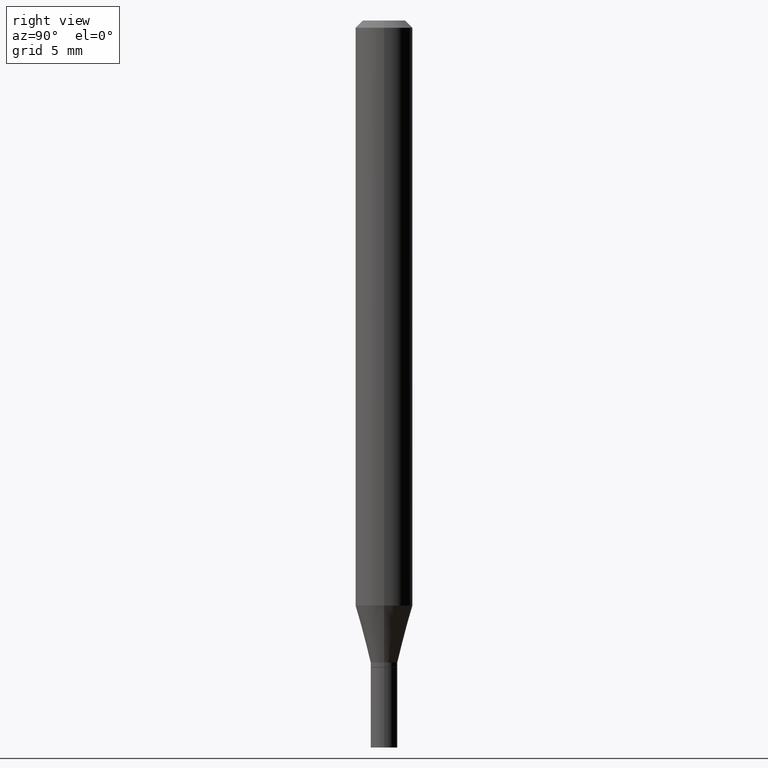
[diagram: clean part render]
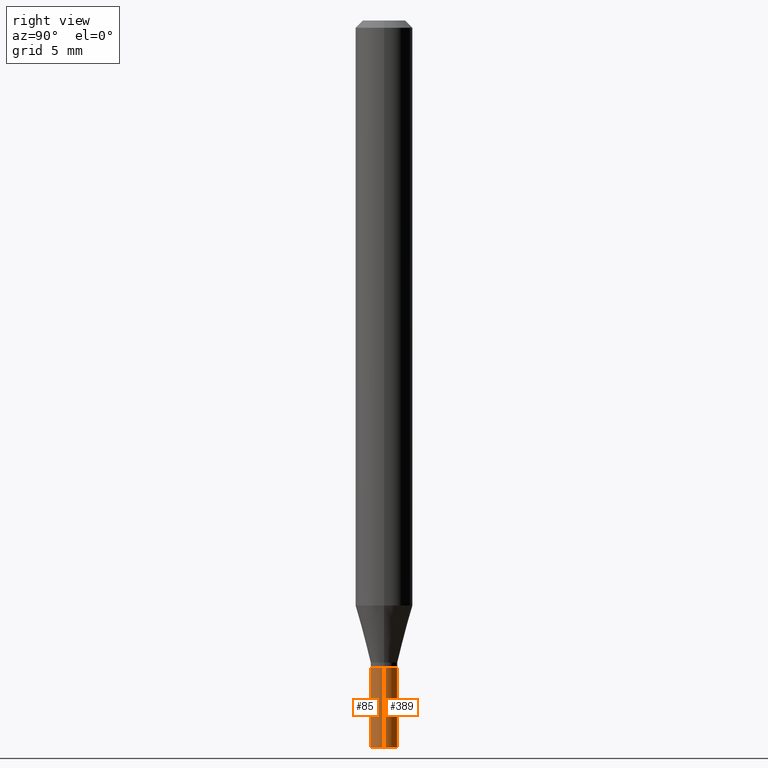
[diagram: same view with one multi-face feature highlighted, each face labeled with its STEP entity id]
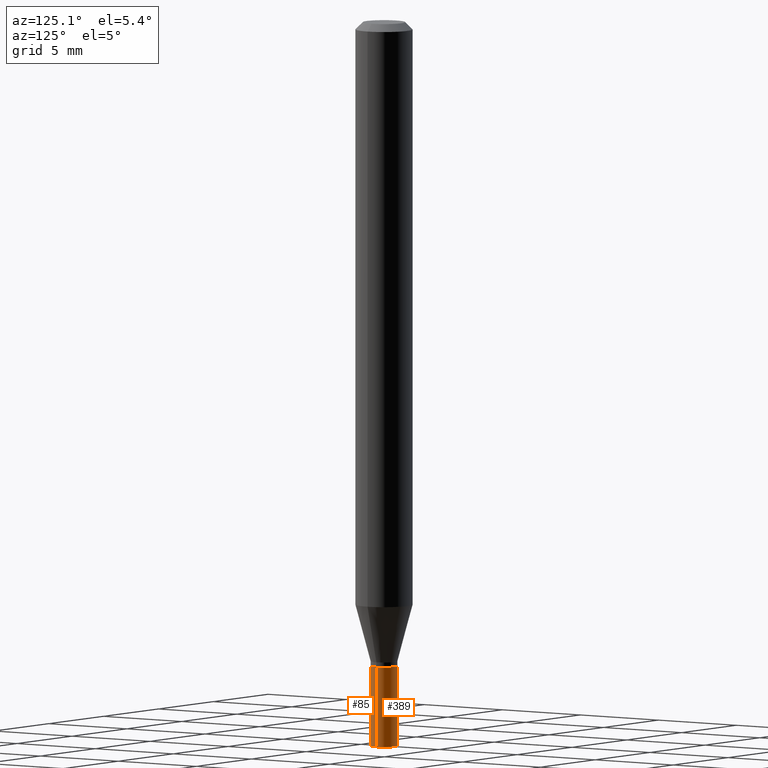
[diagram: same view with one multi-face feature highlighted, each face labeled with its STEP entity id]
A machine part, right view. The highlighted faces form ONE feature: a constant-radius fillet chain: 2 tangent blend faces with common blend radius 0.6998 mm. The faces share edges in the B-rep.
A second angle (auxiliary view) of the same feature is appended — it is thin or edge-on in the first view.
Their STEP definitions:
[1] entity #389 (Cylinder):
#1 = DIRECTION ( 'NONE',  ( 1.000000000000000000, -6.982962677686256455E-15, 0.000000000000000000 ) ) ;
#5 = DIRECTION ( 'NONE',  ( -2.445468806185136877E-29, 3.491481338843145188E-15, 1.000000000000000000 ) ) ;
#6 = DIRECTION ( 'NONE',  ( 1.000000000000000000, -6.982962677686265922E-15, 4.876176775795936353E-29 ) ) ;
#13 = CARTESIAN_POINT ( 'NONE',  ( 0.000000000000000000, 0.000000000000000000, 0.000000000000000000 ) ) ;
#39 = CARTESIAN_POINT ( 'NONE',  ( 3.668203209277704895E-29, -5.237222008264718177E-15, -1.500000000000000222 ) ) ;
#47 = CARTESIAN_POINT ( 'NONE',  ( 3.263722668734683183E-29, -4.659730994820061919E-15, -1.334600000000000009 ) ) ;
#64 = CIRCLE ( 'NONE', #415, 0.02755000000000000157 ) ;
#81 = CARTESIAN_POINT ( 'NONE',  ( 0.02755000000000000157, -5.429602630034974970E-15, -1.500000000000000222 ) ) ;
#90 = EDGE_CURVE ( 'NONE', #91, #250, #330, .T. ) ;
#91 = VERTEX_POINT ( 'NONE', #81 ) ;
#109 = EDGE_CURVE ( 'NONE', #91, #414, #64, .T. ) ;
#133 = ORIENTED_EDGE ( 'NONE', *, *, #90, .F. ) ;
#151 = CYLINDRICAL_SURFACE ( 'NONE', #354, 0.02755000000000000157 ) ;
#169 = ORIENTED_EDGE ( 'NONE', *, *, #109, .T. ) ;
#204 = ORIENTED_EDGE ( 'NONE', *, *, #333, .T. ) ;
#223 = CIRCLE ( 'NONE', #337, 0.02755000000000000157 ) ;
#228 = CARTESIAN_POINT ( 'NONE',  ( -0.02755000000000000157, 1.957545237019076124E-16, -1.355166617365226565E-30 ) ) ;
#232 = CARTESIAN_POINT ( 'NONE',  ( 0.02755000000000000157, -4.852111616590317923E-15, -1.334600000000000009 ) ) ;
#250 = VERTEX_POINT ( 'NONE', #232 ) ;
#259 = DIRECTION ( 'NONE',  ( -2.445468806185136597E-29, 3.491481338843145583E-15, 1.000000000000000000 ) ) ;
#270 = FACE_OUTER_BOUND ( 'NONE', #285, .T. ) ;
#271 = ORIENTED_EDGE ( 'NONE', *, *, #410, .F. ) ;
#285 = EDGE_LOOP ( 'NONE', ( #169, #204, #271, #133 ) ) ;
#289 = CARTESIAN_POINT ( 'NONE',  ( 0.02755000000000000157, -1.923806217702566451E-16, 1.343386701731780509E-30 ) ) ;
#295 = DIRECTION ( 'NONE',  ( -2.445468806185136597E-29, 3.491481338843145583E-15, 1.000000000000000000 ) ) ;
#304 = CARTESIAN_POINT ( 'NONE',  ( -0.02755000000000000157, -4.752721977840483101E-15, -1.500000000000000222 ) ) ;
#327 = LINE ( 'NONE', #228, #466 ) ;
#330 = LINE ( 'NONE', #289, #352 ) ;
#333 = EDGE_CURVE ( 'NONE', #414, #417, #327, .T. ) ;
#335 = CARTESIAN_POINT ( 'NONE',  ( -0.02755000000000000157, -4.752721977840483101E-15, -1.334600000000000009 ) ) ;
#337 = AXIS2_PLACEMENT_3D ( 'NONE', #47, #438, #1 ) ;
#352 = VECTOR ( 'NONE', #5, 39.37007874015748143 ) ;
#354 = AXIS2_PLACEMENT_3D ( 'NONE', #13, #295, #6 ) ;
#364 = DIRECTION ( 'NONE',  ( -2.445468806185136877E-29, 3.491481338843145188E-15, 1.000000000000000000 ) ) ;
#389 = ADVANCED_FACE ( 'NONE', ( #270 ), #151, .T. ) ;
#410 = EDGE_CURVE ( 'NONE', #250, #417, #223, .T. ) ;
#414 = VERTEX_POINT ( 'NONE', #304 ) ;
#415 = AXIS2_PLACEMENT_3D ( 'NONE', #39, #259, #465 ) ;
#417 = VERTEX_POINT ( 'NONE', #335 ) ;
#438 = DIRECTION ( 'NONE',  ( -2.445468806185136597E-29, 3.491481338843145583E-15, 1.000000000000000000 ) ) ;
#465 = DIRECTION ( 'NONE',  ( 1.000000000000000000, -6.982962677686256455E-15, 0.000000000000000000 ) ) ;
#466 = VECTOR ( 'NONE', #364, 39.37007874015748143 ) ;
[2] entity #85 (Cylinder):
#5 = DIRECTION ( 'NONE',  ( -2.445468806185136877E-29, 3.491481338843145188E-15, 1.000000000000000000 ) ) ;
#15 = ORIENTED_EDGE ( 'NONE', *, *, #127, .T. ) ;
#43 = FACE_OUTER_BOUND ( 'NONE', #105, .T. ) ;
#81 = CARTESIAN_POINT ( 'NONE',  ( 0.02755000000000000157, -5.429602630034974970E-15, -1.500000000000000222 ) ) ;
#85 = ADVANCED_FACE ( 'NONE', ( #43 ), #439, .T. ) ;
#90 = EDGE_CURVE ( 'NONE', #91, #250, #330, .T. ) ;
#91 = VERTEX_POINT ( 'NONE', #81 ) ;
#100 = CIRCLE ( 'NONE', #398, 0.02755000000000000157 ) ;
#105 = EDGE_LOOP ( 'NONE', ( #174, #15, #142, #355 ) ) ;
#108 = DIRECTION ( 'NONE',  ( -2.445468806185136597E-29, 3.491481338843145583E-15, 1.000000000000000000 ) ) ;
#110 = CARTESIAN_POINT ( 'NONE',  ( 3.263722668734683183E-29, -4.659730994820061919E-15, -1.334600000000000009 ) ) ;
#127 = EDGE_CURVE ( 'NONE', #414, #91, #100, .T. ) ;
#142 = ORIENTED_EDGE ( 'NONE', *, *, #90, .T. ) ;
#144 = CARTESIAN_POINT ( 'NONE',  ( 0.000000000000000000, 0.000000000000000000, 0.000000000000000000 ) ) ;
#154 = CIRCLE ( 'NONE', #312, 0.02755000000000000157 ) ;
#174 = ORIENTED_EDGE ( 'NONE', *, *, #333, .F. ) ;
#220 = DIRECTION ( 'NONE',  ( -2.445468806185136597E-29, 3.491481338843145583E-15, 1.000000000000000000 ) ) ;
#228 = CARTESIAN_POINT ( 'NONE',  ( -0.02755000000000000157, 1.957545237019076124E-16, -1.355166617365226565E-30 ) ) ;
#232 = CARTESIAN_POINT ( 'NONE',  ( 0.02755000000000000157, -4.852111616590317923E-15, -1.334600000000000009 ) ) ;
#250 = VERTEX_POINT ( 'NONE', #232 ) ;
#251 = AXIS2_PLACEMENT_3D ( 'NONE', #144, #396, #262 ) ;
#262 = DIRECTION ( 'NONE',  ( 1.000000000000000000, -6.982962677686265922E-15, 4.876176775795936353E-29 ) ) ;
#265 = CARTESIAN_POINT ( 'NONE',  ( 3.668203209277704895E-29, -5.237222008264718177E-15, -1.500000000000000222 ) ) ;
#289 = CARTESIAN_POINT ( 'NONE',  ( 0.02755000000000000157, -1.923806217702566451E-16, 1.343386701731780509E-30 ) ) ;
#304 = CARTESIAN_POINT ( 'NONE',  ( -0.02755000000000000157, -4.752721977840483101E-15, -1.500000000000000222 ) ) ;
#312 = AXIS2_PLACEMENT_3D ( 'NONE', #110, #220, #372 ) ;
#325 = DIRECTION ( 'NONE',  ( 1.000000000000000000, -6.982962677686256455E-15, 0.000000000000000000 ) ) ;
#327 = LINE ( 'NONE', #228, #466 ) ;
#330 = LINE ( 'NONE', #289, #352 ) ;
#333 = EDGE_CURVE ( 'NONE', #414, #417, #327, .T. ) ;
#335 = CARTESIAN_POINT ( 'NONE',  ( -0.02755000000000000157, -4.752721977840483101E-15, -1.334600000000000009 ) ) ;
#352 = VECTOR ( 'NONE', #5, 39.37007874015748143 ) ;
#355 = ORIENTED_EDGE ( 'NONE', *, *, #363, .F. ) ;
#363 = EDGE_CURVE ( 'NONE', #417, #250, #154, .T. ) ;
#364 = DIRECTION ( 'NONE',  ( -2.445468806185136877E-29, 3.491481338843145188E-15, 1.000000000000000000 ) ) ;
#372 = DIRECTION ( 'NONE',  ( 1.000000000000000000, -6.982962677686256455E-15, 0.000000000000000000 ) ) ;
#396 = DIRECTION ( 'NONE',  ( -2.445468806185136597E-29, 3.491481338843145583E-15, 1.000000000000000000 ) ) ;
#398 = AXIS2_PLACEMENT_3D ( 'NONE', #265, #108, #325 ) ;
#414 = VERTEX_POINT ( 'NONE', #304 ) ;
#417 = VERTEX_POINT ( 'NONE', #335 ) ;
#439 = CYLINDRICAL_SURFACE ( 'NONE', #251, 0.02755000000000000157 ) ;
#466 = VECTOR ( 'NONE', #364, 39.37007874015748143 ) ;